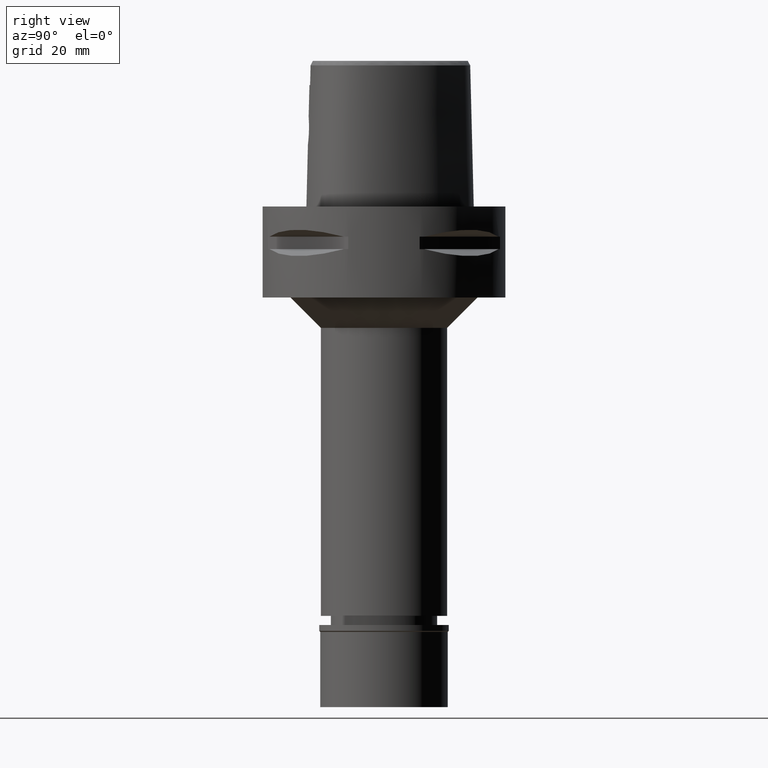
[diagram: clean part render]
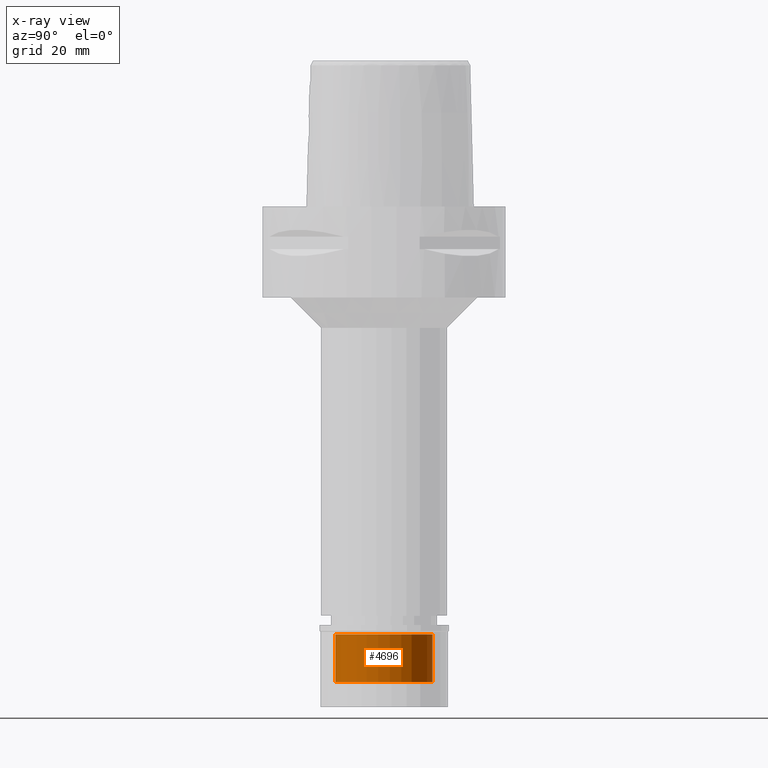
[diagram: x-ray — body ghosted, one internal face saturated and labeled with its STEP entity id]
A machine part, right view, then the same camera in x-ray: the body is ghosted and one INTERNAL B-rep face — a face not visible from any outside direction — is saturated and labeled: STEP entity #4696.
In plain terms, the highlighted cylindrical surface (partial cylindrical patch) has radius 16 mm, axis along (0, 0, -1).
Its self-contained STEP definition (entity closure, byte-faithful):
#37 = LINE ( 'NONE', #2463, #160 ) ;
#148 = ORIENTED_EDGE ( 'NONE', *, *, #3129, .F. ) ;
#160 = VECTOR ( 'NONE', #1986, 1000.000000000000000 ) ;
#176 = DIRECTION ( 'NONE',  ( 0.0000000000000000000, 1.000000000000000000, 0.0000000000000000000 ) ) ;
#198 = CARTESIAN_POINT ( 'NONE',  ( 0.0000000000000000000, 0.0000000000000000000, -18.89999999999999858 ) ) ;
#317 = EDGE_CURVE ( 'NONE', #2831, #950, #502, .T. ) ;
#404 = DIRECTION ( 'NONE',  ( 0.0000000000000000000, -1.000000000000000000, 0.0000000000000000000 ) ) ;
#465 = ORIENTED_EDGE ( 'NONE', *, *, #1069, .T. ) ;
#502 = CIRCLE ( 'NONE', #4776, 16.00000000000000000 ) ;
#557 = DIRECTION ( 'NONE',  ( 0.0000000000000000000, -1.000000000000000000, 0.0000000000000000000 ) ) ;
#901 = VECTOR ( 'NONE', #4953, 1000.000000000000000 ) ;
#950 = VERTEX_POINT ( 'NONE', #1676 ) ;
#1069 = EDGE_CURVE ( 'NONE', #950, #4736, #37, .T. ) ;
#1291 = DIRECTION ( 'NONE',  ( 0.0000000000000000000, 0.0000000000000000000, -1.000000000000000000 ) ) ;
#1377 = EDGE_CURVE ( 'NONE', #4736, #2731, #2043, .T. ) ;
#1382 = CARTESIAN_POINT ( 'NONE',  ( 0.0000000000000000000, 16.00000000000000000, -18.89999999999999858 ) ) ;
#1500 = CARTESIAN_POINT ( 'NONE',  ( 0.0000000000000000000, 0.0000000000000000000, -3.100000000000000089 ) ) ;
#1676 = CARTESIAN_POINT ( 'NONE',  ( 0.0000000000000000000, -16.00000000000000000, -18.89999999999999858 ) ) ;
#1736 = AXIS2_PLACEMENT_3D ( 'NONE', #4838, #1291, #557 ) ;
#1986 = DIRECTION ( 'NONE',  ( 0.0000000000000000000, 0.0000000000000000000, 1.000000000000000000 ) ) ;
#2043 = CIRCLE ( 'NONE', #2871, 16.00000000000000000 ) ;
#2318 = LINE ( 'NONE', #4982, #901 ) ;
#2463 = CARTESIAN_POINT ( 'NONE',  ( 0.0000000000000000000, -16.00000000000000000, -18.89999999999999858 ) ) ;
#2522 = FACE_OUTER_BOUND ( 'NONE', #4720, .T. ) ;
#2731 = VERTEX_POINT ( 'NONE', #3757 ) ;
#2831 = VERTEX_POINT ( 'NONE', #1382 ) ;
#2871 = AXIS2_PLACEMENT_3D ( 'NONE', #1500, #4243, #404 ) ;
#3129 = EDGE_CURVE ( 'NONE', #2831, #2731, #2318, .T. ) ;
#3688 = CARTESIAN_POINT ( 'NONE',  ( 0.0000000000000000000, -16.00000000000000000, -3.100000000000000089 ) ) ;
#3755 = DIRECTION ( 'NONE',  ( 0.0000000000000000000, 0.0000000000000000000, -1.000000000000000000 ) ) ;
#3757 = CARTESIAN_POINT ( 'NONE',  ( 0.0000000000000000000, 16.00000000000000000, -3.100000000000000089 ) ) ;
#4017 = ORIENTED_EDGE ( 'NONE', *, *, #317, .T. ) ;
#4067 = CYLINDRICAL_SURFACE ( 'NONE', #1736, 16.00000000000000000 ) ;
#4127 = ORIENTED_EDGE ( 'NONE', *, *, #1377, .T. ) ;
#4243 = DIRECTION ( 'NONE',  ( 0.0000000000000000000, 0.0000000000000000000, 1.000000000000000000 ) ) ;
#4696 = ADVANCED_FACE ( 'NONE', ( #2522 ), #4067, .F. ) ;
#4720 = EDGE_LOOP ( 'NONE', ( #4017, #465, #4127, #148 ) ) ;
#4736 = VERTEX_POINT ( 'NONE', #3688 ) ;
#4776 = AXIS2_PLACEMENT_3D ( 'NONE', #198, #3755, #176 ) ;
#4838 = CARTESIAN_POINT ( 'NONE',  ( 0.0000000000000000000, 0.0000000000000000000, 0.0000000000000000000 ) ) ;
#4953 = DIRECTION ( 'NONE',  ( 0.0000000000000000000, 0.0000000000000000000, 1.000000000000000000 ) ) ;
#4982 = CARTESIAN_POINT ( 'NONE',  ( 0.0000000000000000000, 16.00000000000000000, -18.89999999999999858 ) ) ;